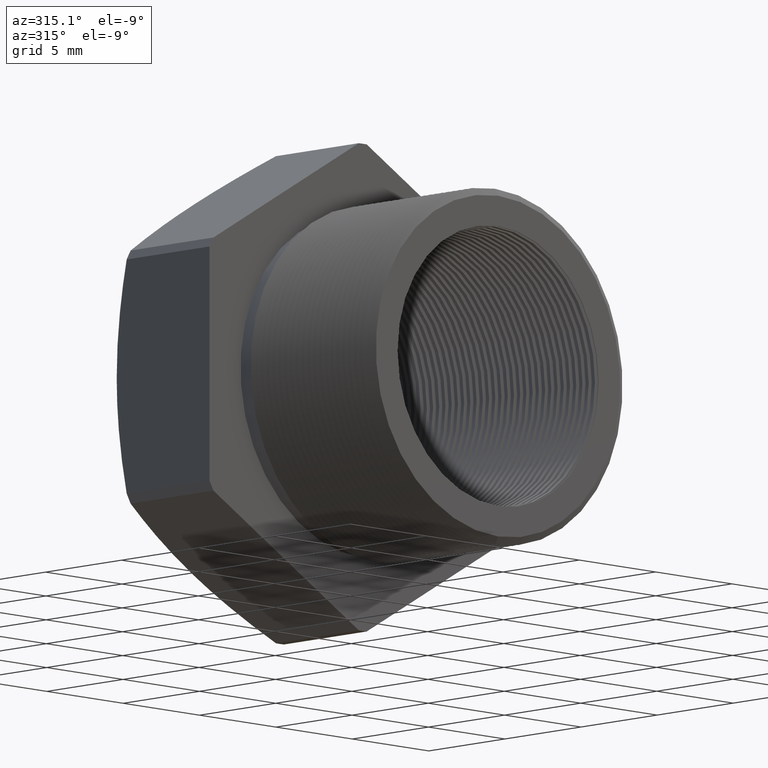
[diagram: clean part render]
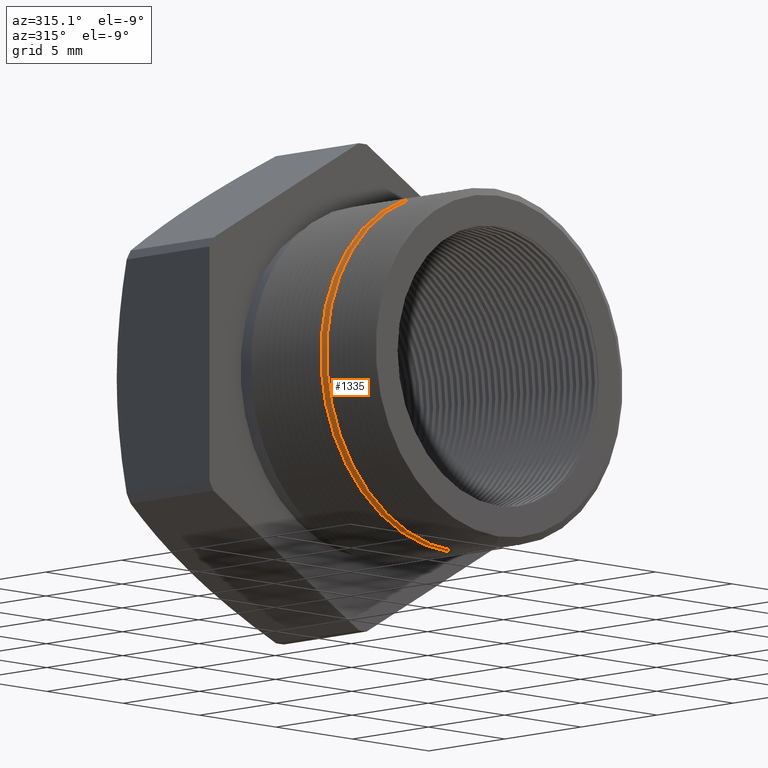
[diagram: same view with one face highlighted and labeled with its STEP entity id]
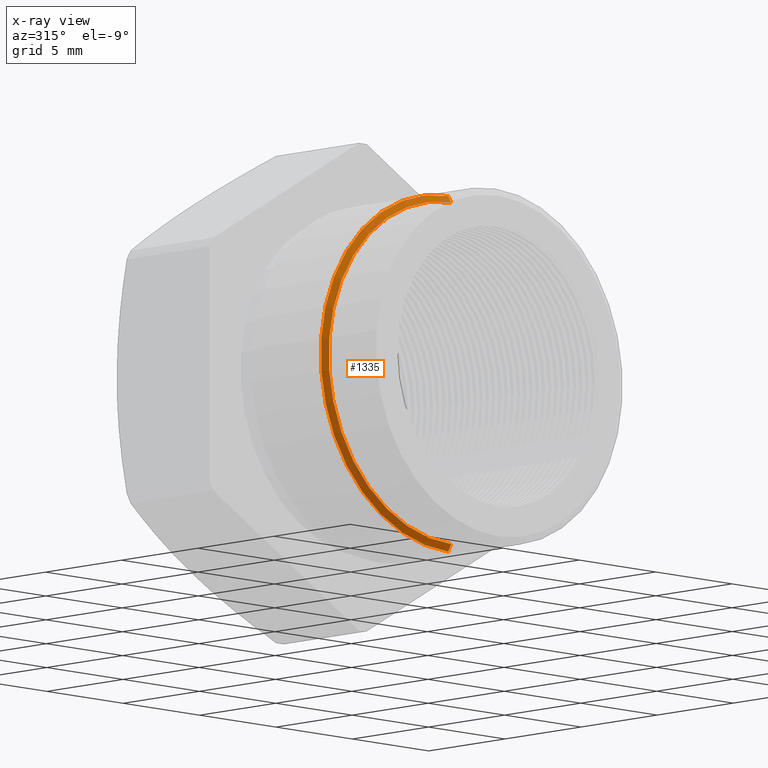
[diagram: x-ray of the same camera — body ghosted, the highlighted face saturated]
A machine part, auxiliary view. The second image highlights one B-rep face of the part: STEP entity #1335.
The next image is the same camera in x-ray: the body ghosted, the highlighted face saturated — about 2% of this face is hidden behind the body in this view.
In plain terms, the highlighted conical surface has half-angle 60 deg.
Its self-contained STEP definition (entity closure, byte-faithful):
#1325 = EDGE_CURVE ( 'NONE', #8370, #8368, #4776, .T. ) ;
#1326 = ORIENTED_EDGE ( 'NONE', *, *, #1325, .F. ) ;
#1327 = ORIENTED_EDGE ( 'NONE', *, *, #8381, .F. ) ;
#1329 = ORIENTED_EDGE ( 'NONE', *, *, #8387, .T. ) ;
#1330 = EDGE_LOOP ( 'NONE', ( #1327, #1326, #1329, #1360 ) ) ;
#1335 = ADVANCED_FACE ( 'NONE', ( #4765 ), #4764, .T. ) ;
#1346 = EDGE_CURVE ( 'NONE', #8383, #8384, #4811, .T. ) ;
#1360 = ORIENTED_EDGE ( 'NONE', *, *, #1346, .F. ) ;
#4759 = DIRECTION ( 'NONE',  ( 0.0000000000000000000, 0.0000000000000000000, 1.000000000000000000 ) ) ;
#4760 = DIRECTION ( 'NONE',  ( -0.0000000000000000000, 1.000000000000000000, -0.0000000000000000000 ) ) ;
#4761 = CARTESIAN_POINT ( 'NONE',  ( 0.0000000000000000000, -0.05364510941705204200, 0.0000000000000000000 ) ) ;
#4762 = AXIS2_PLACEMENT_3D ( 'NONE', #4761, #4760, #4759 ) ;
#4764 = CONICAL_SURFACE ( 'NONE', #4762, 0.3287738815610546900, 1.047197551196596700 ) ;
#4765 = FACE_OUTER_BOUND ( 'NONE', #1330, .T. ) ;
#4772 = DIRECTION ( 'NONE',  ( 0.0000000000000000000, 0.0000000000000000000, -1.000000000000000000 ) ) ;
#4773 = DIRECTION ( 'NONE',  ( 0.0000000000000000000, -1.000000000000000000, 0.0000000000000000000 ) ) ;
#4774 = CARTESIAN_POINT ( 'NONE',  ( 0.0000000000000000000, -0.06119510941705204300, 0.0000000000000000000 ) ) ;
#4775 = AXIS2_PLACEMENT_3D ( 'NONE', #4774, #4773, #4772 ) ;
#4776 = CIRCLE ( 'NONE', #4775, 0.3156968979639098200 ) ;
#4807 = DIRECTION ( 'NONE',  ( 0.0000000000000000000, 0.0000000000000000000, 1.000000000000000000 ) ) ;
#4808 = DIRECTION ( 'NONE',  ( -0.0000000000000000000, 1.000000000000000000, -0.0000000000000000000 ) ) ;
#4809 = CARTESIAN_POINT ( 'NONE',  ( 0.0000000000000000000, -0.05364510941705204200, 0.0000000000000000000 ) ) ;
#4810 = AXIS2_PLACEMENT_3D ( 'NONE', #4809, #4808, #4807 ) ;
#4811 = CIRCLE ( 'NONE', #4810, 0.3287738815610546900 ) ;
#7768 = CARTESIAN_POINT ( 'NONE',  ( 3.946245386446236800E-017, -0.06119510941705204300, -0.3156968979639098200 ) ) ;
#7801 = CARTESIAN_POINT ( 'NONE',  ( 4.026318816969966800E-017, -0.05364510941705204200, 0.3287738815610546900 ) ) ;
#7802 = CARTESIAN_POINT ( 'NONE',  ( 0.0000000000000000000, -0.05364510941705204200, -0.3287738815610546900 ) ) ;
#7803 = DIRECTION ( 'NONE',  ( 1.060575238724906300E-016, 0.5000000000000008900, -0.8660254037844380400 ) ) ;
#7804 = VECTOR ( 'NONE', #7803, 39.37007874015748100 ) ;
#7805 = CARTESIAN_POINT ( 'NONE',  ( 4.026318816969966200E-017, -0.05364510941705204200, -0.3287738815610546900 ) ) ;
#7806 = LINE ( 'NONE', #7805, #7804 ) ;
#7824 = CARTESIAN_POINT ( 'NONE',  ( 0.0000000000000000000, -0.06119510941705204300, 0.3156968979639098200 ) ) ;
#7856 = DIRECTION ( 'NONE',  ( 0.0000000000000000000, 0.5000000000000008900, 0.8660254037844380400 ) ) ;
#7857 = VECTOR ( 'NONE', #7856, 39.37007874015748100 ) ;
#7858 = CARTESIAN_POINT ( 'NONE',  ( 0.0000000000000000000, -0.05364510941705204200, 0.3287738815610546900 ) ) ;
#7859 = LINE ( 'NONE', #7858, #7857 ) ;
#8368 = VERTEX_POINT ( 'NONE', #7768 ) ;
#8370 = VERTEX_POINT ( 'NONE', #7824 ) ;
#8381 = EDGE_CURVE ( 'NONE', #8368, #8383, #7806, .T. ) ;
#8383 = VERTEX_POINT ( 'NONE', #7802 ) ;
#8384 = VERTEX_POINT ( 'NONE', #7801 ) ;
#8387 = EDGE_CURVE ( 'NONE', #8370, #8384, #7859, .T. ) ;